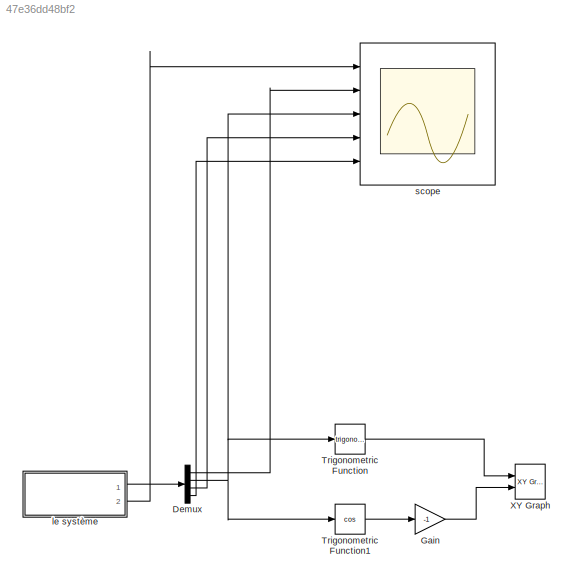
MODEL slx_47e36dd48bf2
KIND model
CONFIG AbsTol = auto
CONFIG FixedStep = 0.01
CONFIG MaxStep = auto
CONFIG MinStep = auto
CONFIG RelTol = 1e-3
CONFIG SampleTimeConstraint = Unconstrained
CONFIG Solver = ode3
CONFIG SolverMode = Auto
CONFIG SolverName = ode3
CONFIG StartTime = 0.0
CONFIG StopTime = 10
BLOCK [Demux] Demux
  DisplayOption = bar
  Ports = [1, 4]
BLOCK [Gain] Gain
  Gain = -1
  OutDataTypeStr = Inherit: Inherit via internal rule
  ParamDataTypeStr = Inherit: Inherit via internal rule
  SaturateOnIntegerOverflow = off
BLOCK [Trigonometry] Trigonometric Function
  Ports = [1, 1]
BLOCK [Trigonometry] Trigonometric Function1
  Operator = cos
  Ports = [1, 1]
BLOCK [Reference] XY Graph  REF=simulink/Sinks/XY Graph
  Ports = [2]
  SourceBlock = simulink/Sinks/XY Graph
  SourceType = XY scope.
  st = -1
  xmax = 1
  xmin = -1
  ymax = 1
  ymin = -1
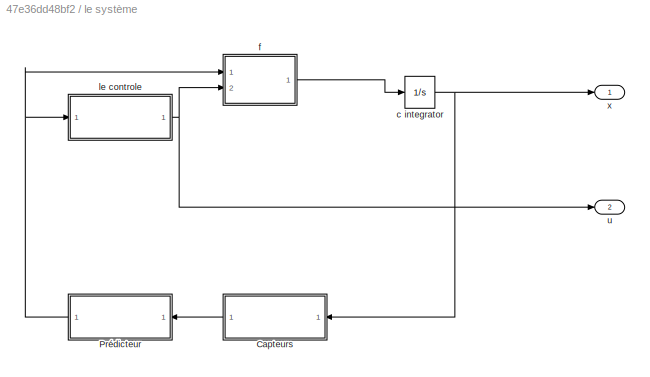
BLOCK [SubSystem] le système
  Ports = [0, 2]
  RequestExecContextInheritance = off
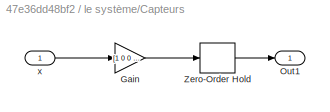
BLOCK [SubSystem] le système/Capteurs
  Ports = [1, 1]
  RequestExecContextInheritance = off
  TreatAsAtomicUnit = on
BLOCK [Gain] le système/Capteurs/Gain
  Gain = [1 0 0 0; 0 0 0 1]
  Multiplication = Matrix(K*u)
  OutDataTypeStr = Inherit: Inherit via internal rule
  ParamDataTypeStr = Inherit: Inherit via internal rule
  SaturateOnIntegerOverflow = off
BLOCK [Outport] le système/Capteurs/Out1
  IconDisplay = Port number
  PortDimensions = 2
BLOCK [ZeroOrderHold] le système/Capteurs/Zero-Order Hold
  SampleTime = 0.01
BLOCK [Inport] le système/Capteurs/x
  IconDisplay = Port number
  PortDimensions = 4
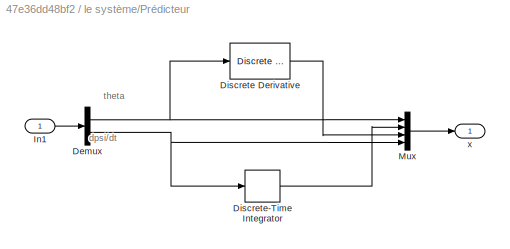
BLOCK [SubSystem] le système/Prédicteur
  Ports = [1, 1]
  RequestExecContextInheritance = off
  TreatAsAtomicUnit = on
BLOCK [Demux] le système/Prédicteur/Demux
  DisplayOption = bar
  Outputs = 2
  Ports = [1, 2]
BLOCK [Reference] le système/Prédicteur/Discrete Derivative  REF=simulink/Discrete/Discrete Derivative
  DoSatur = off
  ICPrevScaledInput = 0.0
  InputProcessing = Inherited
  LockScale = off
  OutDataType = fixdt(1, 16)
  OutDataTypeStr = Inherit: Inherit via internal rule
  OutMax = []
  OutMin = []
  OutScaling = 2^-10
  OutputDataTypeScalingMode = Inherit via internal rule
  Ports = [1, 1]
  RndMeth = Floor
  SourceBlock = simulink/Discrete/Discrete Derivative
  SourceType = Discrete Derivative
  gainval = 1.0
BLOCK [DiscreteIntegrator] le système/Prédicteur/Discrete-Time Integrator
  InitialConditionSetting = State (most efficient)
  Ports = [1, 1]
  SampleTime = -1
BLOCK [Inport] le système/Prédicteur/In1
  IconDisplay = Port number
  PortDimensions = 2
BLOCK [Mux] le système/Prédicteur/Mux
  DisplayOption = bar
  Ports = [4, 1]
BLOCK [Outport] le système/Prédicteur/x
  IconDisplay = Port number
  PortDimensions = 4
BLOCK [Integrator] le système/c integrator
  InitialCondition = x0
  Ports = [1, 1]
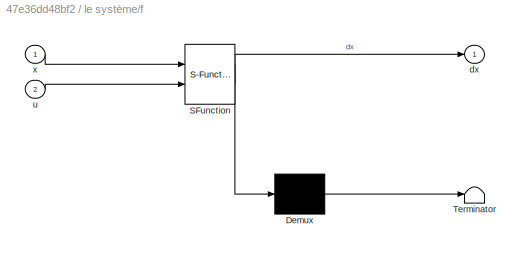
BLOCK [SubSystem] le système/f
  ErrorFcn = Stateflow.Translate.translate
  PermitHierarchicalResolution = ExplicitOnly
  Ports = [2, 1]
  RequestExecContextInheritance = off
  SFBlockType = MATLAB Function
  TreatAsAtomicUnit = on
BLOCK [Demux] le système/f/ Demux 
  Outputs = 1
  Ports = [1, 1]
BLOCK [S-Function] le système/f/ SFunction 
  EnableBusSupport = on
  FunctionName = sf_sfun
  PortCounts = [2 2]
  Ports = [2, 2]
  Tag = Stateflow S-Function part3 2
BLOCK [Terminator] le système/f/ Terminator 
BLOCK [Outport] le système/f/dx
  IconDisplay = Port number
BLOCK [Inport] le système/f/u
  IconDisplay = Port number
  Port = 2
BLOCK [Inport] le système/f/x
  IconDisplay = Port number
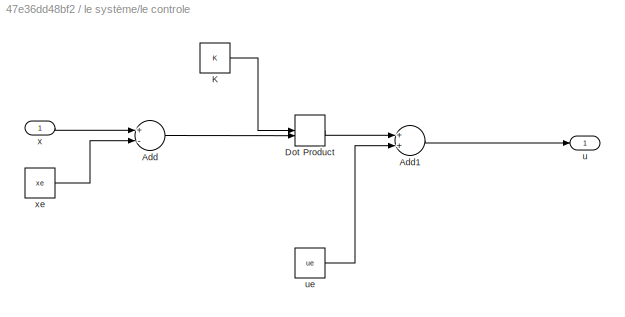
BLOCK [SubSystem] le système/le controle
  Ports = [1, 1]
  RequestExecContextInheritance = off
  TreatAsAtomicUnit = on
BLOCK [Sum] le système/le controle/Add
  InputSameDT = off
  Inputs = +-
  OutDataTypeStr = Inherit: Inherit via internal rule
  Ports = [2, 1]
  SaturateOnIntegerOverflow = off
BLOCK [Sum] le système/le controle/Add1
  InputSameDT = off
  OutDataTypeStr = Inherit: Inherit via internal rule
  Ports = [2, 1]
  SaturateOnIntegerOverflow = off
BLOCK [DotProduct] le système/le controle/Dot Product
  OutDataTypeStr = Inherit: Inherit via internal rule
BLOCK [Constant] le système/le controle/K
  Value = K
BLOCK [Outport] le système/le controle/u
  IconDisplay = Port number
BLOCK [Constant] le système/le controle/ue
  Value = ue
BLOCK [Inport] le système/le controle/x
  IconDisplay = Port number
BLOCK [Constant] le système/le controle/xe
  Value = xe
BLOCK [Outport] le système/u
  IconDisplay = Port number
  Port = 2
BLOCK [Outport] le système/x
  IconDisplay = Port number
BLOCK [Scope] scope
  Floating = off
  NumInputPorts = 5
  Ports = [5]
  SaveName = ScopeData1
  TimeRange = 10
  YMax = 0.01~0.314159~0~0.5~0.0025
  YMin = -0.001~0.314159~-0.00175~-3.5~-0.02
  ZoomMode = xonly
ANNOTATION le système/Prédicteur: dpsi/dt
ANNOTATION le système/Prédicteur: theta
LINE Demux:1 -> scope:2
NET Demux:2 -> Trigonometric Function1:1, Trigonometric Function:1, scope:3
LINE Demux:3 -> scope:4
LINE Demux:4 -> scope:5
LINE Gain:1 -> XY Graph:2
LINE Trigonometric Function1:1 -> Gain:1
LINE Trigonometric Function:1 -> XY Graph:1
LINE le système/Capteurs/Gain:1 -> le système/Capteurs/Zero-Order Hold:1
LINE le système/Capteurs/Zero-Order Hold:1 -> le système/Capteurs/Out1:1
LINE le système/Capteurs/x:1 -> le système/Capteurs/Gain:1
LINE le système/Capteurs:1 -> le système/Prédicteur:1
NET le système/Prédicteur/Demux:1 -> le système/Prédicteur/Discrete Derivative:1, le système/Prédicteur/Mux:1
NET le système/Prédicteur/Demux:2 -> le système/Prédicteur/Discrete-Time Integrator:1, le système/Prédicteur/Mux:4
LINE le système/Prédicteur/Discrete Derivative:1 -> le système/Prédicteur/Mux:3
LINE le système/Prédicteur/Discrete-Time Integrator:1 -> le système/Prédicteur/Mux:2
LINE le système/Prédicteur/In1:1 -> le système/Prédicteur/Demux:1
LINE le système/Prédicteur/Mux:1 -> le système/Prédicteur/x:1
NET le système/Prédicteur:1 -> le système/f:1, le système/le controle:1
NET le système/c integrator:1 -> le système/Capteurs:1, le système/x:1
LINE le système/f:1 -> le système/c integrator:1
LINE le système/le controle/Add1:1 -> le système/le controle/u:1
LINE le système/le controle/Add:1 -> le système/le controle/Dot Product:2
LINE le système/le controle/Dot Product:1 -> le système/le controle/Add1:1
LINE le système/le controle/K:1 -> le système/le controle/Dot Product:1
LINE le système/le controle/ue:1 -> le système/le controle/Add1:2
LINE le système/le controle/x:1 -> le système/le controle/Add:1
LINE le système/le controle/xe:1 -> le système/le controle/Add:2
NET le système/le controle:1 -> le système/f:2, le système/u:1
LINE le système:1 -> Demux:1
LINE le système:2 -> scope:1
note: NET lines group one-source signal fan-out (src -> all destinations, sorted); 1:1 wires keep LINE
CHART le système/f states=1 transitions=1
  STATE_LABEL 'eML_blk_kernel()'
  STATE_LABEL 'SCRIPT:\nfunction dx   = f(x, u)\n%   Dynamic equations of motion of the segway on an axis.\n%   Inputs: - x = [theta psi dtheta dpsi]\n%               theta: average angle of the wheels      [rad]\n%               psi: body pitch angle                   [rad]\n%               dtheta: average velocity of the wheels  [rad/s]\n%               dpsi: body pitch velocity               [rad/s]\n%          - u: ...<+2028ch>'
